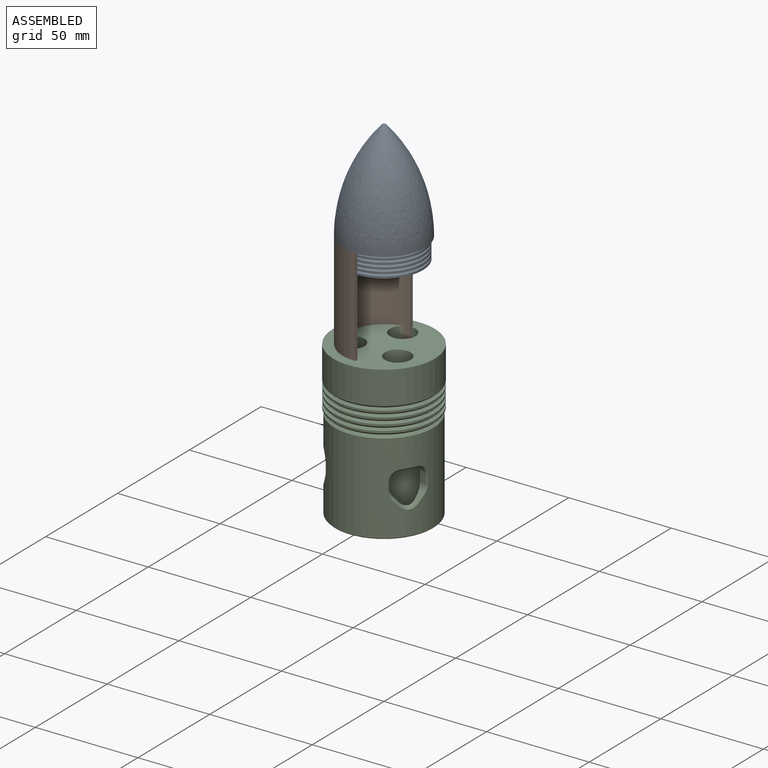
[diagram: assembled view]
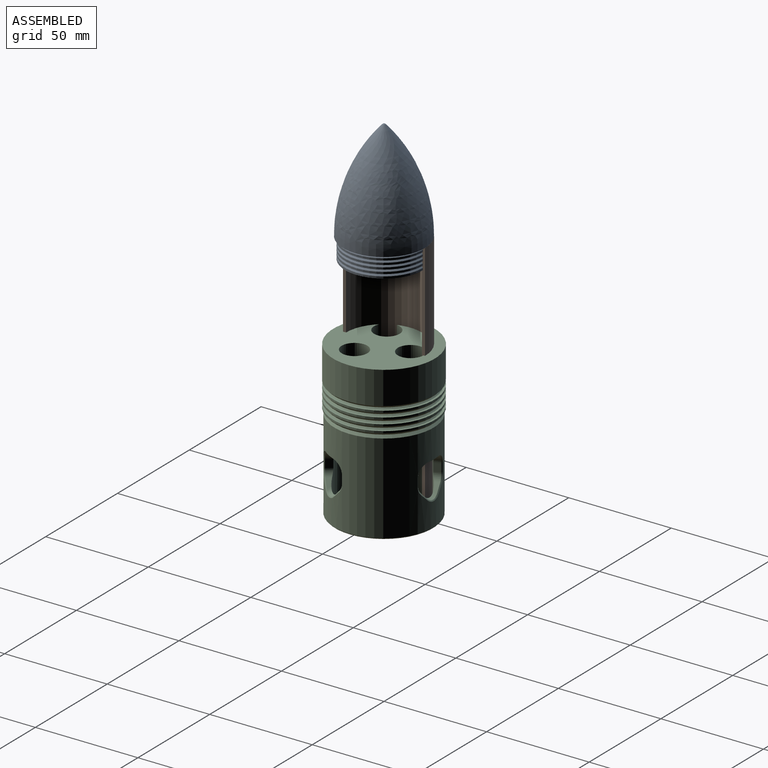
[diagram: assembled view, second angle]
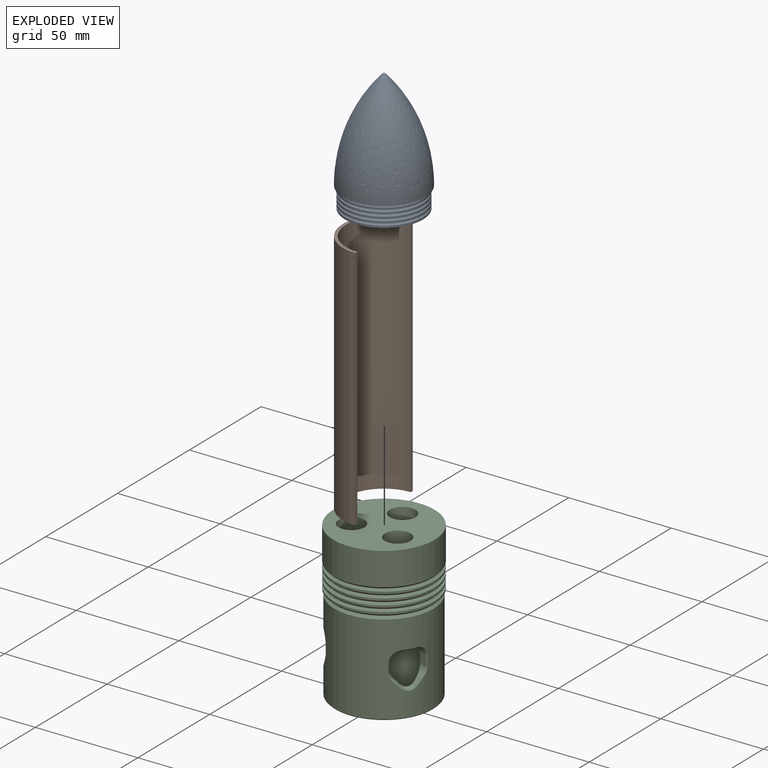
[diagram: exploded view]
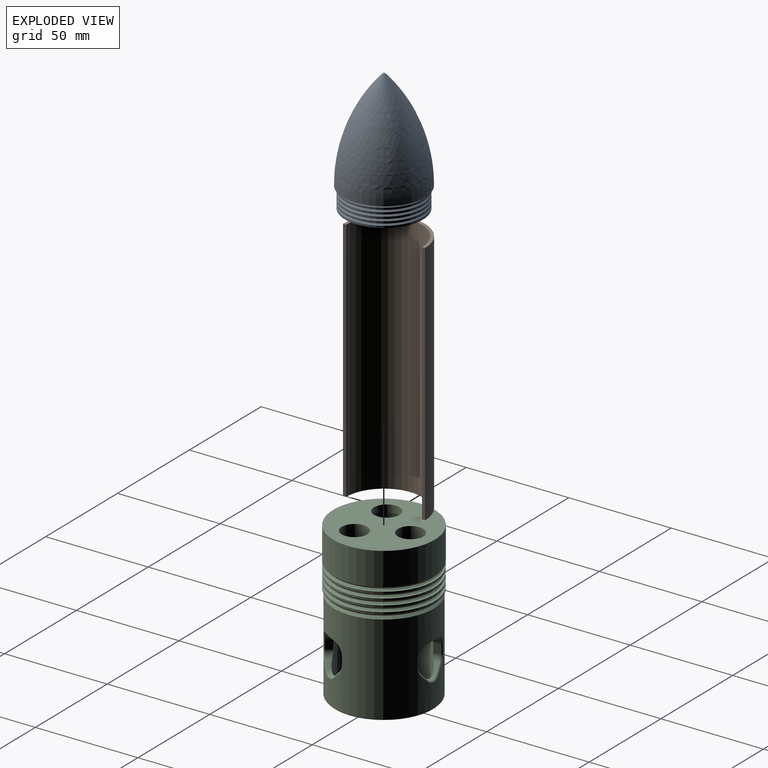
[diagram: exploded view, second angle]
ASSEMBLY  parts=3 mates=2
PART A: 79 faces, bbox 42.4x42.4x62 mm
  f0: sphere r=1mm, area 2mm2, adj f1
  f1: revolved ~49.22x40mm, area 4574.2mm2, adj f0,f2
  f2: plane 40x40mm, normal (0,0,-1), area 238.8mm2, adj f1,f3
  f3: cone r=18mm half-angle=45deg, axis (0,0,-1), area 164.4mm2, adj f2,f4
  f4: cylinder r=19mm len=38mm, axis (0,0,1), area 119.4mm2, adj f3,f5
  f5: plane 38x38mm, normal (0,0,-1), area 116.2mm2, adj f4,f6
  f6: cone r=18mm half-angle=45deg, axis (0,0,-1), area 164.4mm2, adj f5,f7
  f7: cylinder r=19mm len=38mm, axis (0,0,1), area 119.4mm2, adj f6,f8
  f8: plane 38x38mm, normal (0,0,-1), area 116.2mm2, adj f7,f9
  f9: cone r=18mm half-angle=45deg, axis (0,0,-1), area 164.4mm2, adj f8,f10
  f10: cylinder r=19mm len=38mm, axis (0,0,1), area 119.4mm2, adj f9,f11
  f11: plane 38x38mm, normal (0,0,-1), area 116.2mm2, adj f10,f12
  f12: cone r=18mm half-angle=45deg, axis (0,0,-1), area 164.4mm2, adj f11,f13
  f13: cylinder r=19mm len=38mm, axis (0,0,1), area 119.4mm2, adj f12,f14
  f14: plane 38x38mm, normal (0,0,-1), area 116.2mm2, adj f13,f15
  f15: cone r=18mm half-angle=45deg, axis (0,0,-1), area 164.4mm2, adj f14,f16
  f16: cylinder r=19mm len=38mm, axis (0,0,1), area 119.4mm2, adj f15,f17
  f17: plane 38x38mm, normal (0,0,-1), area 728.2mm2, adj f16,f18,f19,f20,f21,f22,f23
  f18: plane 10.83x8.75mm, normal (0.5,-0.87,0), area 109.4mm2, adj f17,f19,f23,f38
  f19: plane 10.83x8.75mm, normal (-0.5,-0.87,0), area 109.4mm2, adj f17,f18,f20,f37
  f20: plane 12.5x8.75mm, normal (-1,0,0), area 109.4mm2, adj f17,f19,f21,f39
  f21: plane 10.83x8.75mm, normal (-0.5,0.87,0), area 109.4mm2, adj f17,f20,f22,f41
  f22: plane 10.83x8.75mm, normal (0.5,0.87,0), area 109.4mm2, adj f17,f21,f23,f42
  f23: plane 12.5x8.75mm, normal (1,0,0), area 109.4mm2, adj f17,f18,f22,f40
  f24: revolved ~17.97x16.76mm, area 0mm2, adj f25,f26,f27,f28,f29,f30
  f25: bspline ~24.3x17.14mm, area 100.9mm2, adj f24,f26,f30,f36
  f26: bspline ~24.95x13.08mm, area 100.8mm2, adj f24,f25,f27,f35
  f27: bspline ~24.32x17.08mm, area 100.9mm2, adj f24,f26,f28,f34
  f28: bspline ~24.3x17.14mm, area 100.9mm2, adj f24,f27,f29,f33
  f29: bspline ~24.95x13.08mm, area 100.8mm2, adj f24,f28,f30,f32
  f30: bspline ~24.32x17.08mm, area 100.9mm2, adj f24,f25,f29,f31
  f31: plane 30.46x9.58mm, normal (0.5,-0.87,0), area 302.7mm2, adj f30,f32,f36,f38
  f32: plane 30.46x11.06mm, normal (1,0,0), area 302.7mm2, adj f29,f31,f33,f40
  f33: plane 30.46x9.58mm, normal (0.5,0.87,0), area 302.7mm2, adj f28,f32,f34,f42
  f34: plane 30.46x9.58mm, normal (-0.5,0.87,0), area 302.7mm2, adj f27,f33,f35,f41
  f35: plane 30.46x11.06mm, normal (-1,0,0), area 302.7mm2, adj f26,f34,f36,f39
  f36: plane 30.46x9.58mm, normal (-0.5,-0.87,0), area 302.7mm2, adj f25,f31,f35,f37
  f37: plane 10.83x6.97mm, normal (-0.35,-0.61,-0.71), area 20.8mm2, adj f19,f36,f38,f39
  f38: plane 10.83x6.97mm, normal (0.35,-0.61,-0.71), area 20.8mm2, adj f18,f31,f37,f40
  f39: plane 12.5x1.25mm, normal (-0.71,0,-0.71), area 20.8mm2, adj f20,f35,f37,f41
  f40: plane 12.5x1.25mm, normal (0.71,0,-0.71), area 20.8mm2, adj f23,f32,f38,f42
  f41: plane 10.83x6.97mm, normal (-0.35,0.61,-0.71), area 20.8mm2, adj f21,f34,f39,f42
  f42: plane 10.83x6.97mm, normal (0.35,0.61,-0.71), area 20.8mm2, adj f22,f33,f40,f41
  f43: bspline ~17.25x11.82mm, area 45.7mm2, adj f44,f45,f46,f47
  f44: plane 21.2x6.09mm, normal (-0.5,0.87,0), area 63mm2, adj f43,f46,f47,f48
  f45: plane 21.21x6.67mm, normal (1,0,0), area 63mm2, adj f43,f46,f47,f48
  f46: plane 21.47x9.58mm, normal (0.5,0.87,0), area 223.8mm2, adj f43,f44,f45,f48
  f47: revolved ~16.86x13.39mm, area 256.1mm2, adj f43,f44,f45,f48
  f48: plane 13.24x9.76mm, normal (0,0,1), area 66.4mm2, adj f44,f45,f46,f47
  f49: plane 15.29x5.42mm, normal (0,0,1), area 66.4mm2, adj f51,f52,f53,f54
  f50: bspline ~20.1x12.09mm, area 45.7mm2, adj f51,f52,f53,f54
  f51: plane 21.2x6.09mm, normal (0.5,0.87,0), area 63mm2, adj f49,f50,f53,f54
  f52: plane 21.2x6.09mm, normal (0.5,-0.87,0), area 63mm2, adj f49,f50,f53,f54
  f53: plane 21.47x11.06mm, normal (1,0,0), area 223.8mm2, adj f49,f50,f51,f52
  f54: revolved ~16.86x15.29mm, area 256.1mm2, adj f49,f50,f51,f52
  f55: plane 13.24x9.76mm, normal (0,0,1), area 66.4mm2, adj f57,f58,f59,f60
  f56: bspline ~17.66x12.47mm, area 45.7mm2, adj f57,f58,f59,f60
  f57: plane 21.21x6.67mm, normal (1,0,0), area 63mm2, adj f55,f56,f59,f60
  f58: plane 21.2x6.09mm, normal (-0.5,-0.87,0), area 63mm2, adj f55,f56,f59,f60
  f59: plane 21.47x9.58mm, normal (0.5,-0.87,0), area 223.8mm2, adj f55,f56,f57,f58
  f60: revolved ~16.86x13.39mm, area 256.1mm2, adj f55,f56,f57,f58
  f61: plane 13.24x9.76mm, normal (0,0,1), area 66.4mm2, adj f63,f64,f65,f66
  f62: bspline ~17.25x11.82mm, area 45.7mm2, adj f63,f64,f65,f66
  f63: plane 21.2x6.09mm, normal (0.5,-0.87,0), area 63mm2, adj f61,f62,f65,f66
  f64: plane 21.21x6.67mm, normal (-1,0,0), area 63mm2, adj f61,f62,f65,f66
  f65: plane 21.47x9.58mm, normal (-0.5,-0.87,0), area 223.8mm2, adj f61,f62,f63,f64
  f66: revolved ~16.86x13.39mm, area 256.1mm2, adj f61,f62,f63,f64
  f67: plane 15.29x5.42mm, normal (0,0,1), area 66.4mm2, adj f69,f70,f71,f72
  f68: bspline ~20.1x12.09mm, area 45.7mm2, adj f69,f70,f71,f72
  f69: plane 21.2x6.09mm, normal (-0.5,-0.87,0), area 63mm2, adj f67,f68,f71,f72
  f70: plane 21.2x6.09mm, normal (-0.5,0.87,0), area 63mm2, adj f67,f68,f71,f72
  f71: plane 21.47x11.06mm, normal (-1,0,0), area 223.8mm2, adj f67,f68,f69,f70
  f72: revolved ~16.86x15.29mm, area 256.1mm2, adj f67,f68,f69,f70
  f73: bspline ~17.66x12.47mm, area 45.7mm2, adj f74,f75,f76,f77
  f74: plane 21.21x6.67mm, normal (1,0,0), area 63mm2, adj f73,f76,f77,f78
  f75: plane 21.2x6.09mm, normal (-0.5,-0.87,0), area 63mm2, adj f73,f76,f77,f78
  f76: plane 21.47x9.58mm, normal (0.5,-0.87,0), area 223.8mm2, adj f73,f74,f75,f78
  f77: revolved ~16.86x13.39mm, area 256.1mm2, adj f73,f74,f75,f78
  f78: plane 13.24x9.76mm, normal (0,0,-1), area 66.4mm2, adj f74,f75,f76,f77
PART B: 6 faces, bbox 20x40x120 mm
  f0: plane 40x20mm, normal (0,0,-1), area 90.7mm2, adj f1,f3,f4,f5
  f1: cylinder r=18.5mm len=120mm, axis (0,0,-1), area 6974.3mm2, adj f0,f2,f4,f5
  f2: plane 40x20mm, normal (0,0,1), area 90.7mm2, adj f1,f3,f4,f5
  f3: cylinder r=20mm len=120mm, axis (0,0,-1), area 7539.8mm2, adj f0,f2,f4,f5
  f4: plane 120x1.5mm, normal (1,0,0), area 180mm2, adj f0,f1,f2,f3
  f5: plane 120x1.5mm, normal (1,0,0), area 180mm2, adj f0,f1,f2,f3
PART C: 98 faces, bbox 49.5x49.5x75 mm
  f0: cylinder r=9.25mm len=5mm, axis (0,0,-1), area 13mm2, adj f1,f15,f35
  f1: cylinder r=9.25mm len=30mm, axis (0,0,-1), area 1539.1mm2, adj f0,f7,f12,f13,f15,f21,f22,f23
  f2: cylinder r=9.25mm len=30mm, axis (0,0,-1), area 1529.9mm2, adj f3,f7,f8,f9,f14,f19,f20,f25
  f3: cylinder r=9.25mm len=3.56mm, axis (0,0,-1), area 2.6mm2, adj f2,f14,f36
  f4: cylinder r=9.25mm len=5mm, axis (0,0,-1), area 13mm2, adj f5,f16,f37
  f5: cylinder r=9.25mm len=30mm, axis (0,0,-1), area 1539.1mm2, adj f4,f7,f10,f11,f16,f17,f18,f27
  f6: cylinder r=24.24mm len=48.48mm, axis (0,0,-1), area 5981.5mm2, adj f66,f67,f68,f69,f70,f71,f72,f73
  f7: plane 47.48x47.48mm, normal (0,0,-1), area 964.2mm2, adj f1,f2,f5,f97
  f8: plane 3.93x3.36mm, normal (0.17,-0.98,0), area 13.4mm2, adj f2,f26,f36,f77
  f9: plane 3.93x2.62mm, normal (-0.77,0.64,0), area 13.4mm2, adj f2,f25,f32,f85
  f10: plane 3.93x2.62mm, normal (0.77,0.64,0), area 13.4mm2, adj f5,f28,f37,f75
  f11: plane 3.93x3.36mm, normal (-0.17,-0.98,0), area 13.4mm2, adj f5,f27,f33,f67
  f12: plane 3.93x3.21mm, normal (-0.94,0.34,0), area 13.4mm2, adj f1,f23,f34,f95
  f13: plane 3.93x3.21mm, normal (0.94,0.34,0), area 13.4mm2, adj f1,f24,f35,f87
  f14: plane 19.99x18.5mm, normal (0,0,-1), area 155.4mm2, adj f2,f3,f32,f36,f63,f81
  f15: plane 20x18.5mm, normal (0,0,-1), area 155.4mm2, adj f0,f1,f34,f35,f65,f91
  f16: plane 19.99x18.5mm, normal (0,0,-1), area 155.4mm2, adj f4,f5,f33,f37,f64,f71
  f17: plane 3.87x3.52mm, normal (-0.12,-0.7,0.71), area 10.1mm2, adj f5,f27,f31,f68
  f18: plane 4.2x3.57mm, normal (0.54,0.45,0.71), area 10.1mm2, adj f5,f28,f31,f72
  f19: plane 4.2x3.57mm, normal (-0.54,0.45,0.71), area 10.1mm2, adj f2,f25,f30,f82
  f20: plane 3.87x3.52mm, normal (0.12,-0.7,0.71), area 10.1mm2, adj f2,f26,f30,f78
  f21: plane 3.52x3.45mm, normal (-0.66,0.24,0.71), area 10.1mm2, adj f1,f23,f29,f92
  f22: plane 3.52x3.45mm, normal (0.66,0.24,0.71), area 10.1mm2, adj f1,f24,f29,f88
  f23: cylinder r=5mm len=3.71mm, axis (0.34,0.94,0), area 12.1mm2, adj f1,f12,f21,f94
  f24: cylinder r=5mm len=3.71mm, axis (0.34,-0.94,0), area 12.1mm2, adj f1,f13,f22,f86
  f25: cylinder r=5mm len=3.56mm, axis (0.64,0.77,0), area 12.1mm2, adj f2,f9,f19,f84
  f26: cylinder r=5mm len=3.62mm, axis (-0.98,-0.17,0), area 12.1mm2, adj f2,f8,f20,f76
  f27: cylinder r=5mm len=3.62mm, axis (-0.98,0.17,0), area 12.1mm2, adj f5,f11,f17,f66
  f28: cylinder r=5mm len=3.56mm, axis (0.64,-0.77,0), area 12.1mm2, adj f5,f10,f18,f74
  f29: cylinder r=5mm len=6.64mm, axis (0,0.95,-0.32), area 9.9mm2, adj f1,f21,f22,f90
  f30: cylinder r=5mm len=6.73mm, axis (-0.82,-0.47,-0.32), area 9.9mm2, adj f2,f19,f20,f80
  f31: cylinder r=5mm len=6.73mm, axis (0.82,-0.47,-0.32), area 9.9mm2, adj f5,f17,f18,f70
  f32: cylinder r=5mm len=6.03mm, axis (0.64,0.77,0), area 20.4mm2, adj f2,f9,f14,f83
  f33: cylinder r=5mm len=5.52mm, axis (-0.98,0.17,0), area 20.4mm2, adj f5,f11,f16,f69
  f34: cylinder r=5mm len=5.87mm, axis (0.34,0.94,0), area 20.4mm2, adj f1,f12,f15,f93
  f35: cylinder r=5mm len=5.87mm, axis (0.34,-0.94,0), area 20.4mm2, adj f0,f13,f15,f89
  f36: cylinder r=5mm len=5.52mm, axis (-0.98,-0.17,0), area 20mm2, adj f2,f3,f8,f14,f79
  f37: cylinder r=5mm len=6.03mm, axis (0.64,-0.77,0), area 20.4mm2, adj f4,f10,f16,f73
  f38: cylinder r=24.74mm len=49.48mm, axis (0,0,-1), area 155.4mm2, adj f39,f42
  f39: plane 49.48x49.48mm, normal (0,0,1), area 152.3mm2, adj f38,f46
  f40: plane 47.48x47.48mm, normal (0,0,-1), area 146mm2, adj f41,f42
  f41: cone r=22.74mm half-angle=45deg, axis (0,0,-1), area 206.5mm2, adj f40,f96
  f42: cone r=24.74mm half-angle=45deg, axis (0,0,1), area 215.4mm2, adj f38,f40
  f43: cylinder r=24.74mm len=49.48mm, axis (0,0,-1), area 155.4mm2, adj f44,f47
  f44: plane 49.48x49.48mm, normal (0,0,1), area 152.3mm2, adj f43,f51
  f45: plane 47.48x47.48mm, normal (0,0,-1), area 146mm2, adj f46,f47
  f46: cone r=22.74mm half-angle=45deg, axis (0,0,-1), area 206.5mm2, adj f39,f45
  f47: cone r=24.74mm half-angle=45deg, axis (0,0,1), area 215.4mm2, adj f43,f45
  f48: cylinder r=24.74mm len=49.48mm, axis (0,0,-1), area 155.4mm2, adj f49,f52
  f49: plane 49.48x49.48mm, normal (0,0,1), area 152.3mm2, adj f48,f56
  f50: plane 47.48x47.48mm, normal (0,0,-1), area 146mm2, adj f51,f52
  f51: cone r=22.74mm half-angle=45deg, axis (0,0,-1), area 206.5mm2, adj f44,f50
  f52: cone r=24.74mm half-angle=45deg, axis (0,0,1), area 215.4mm2, adj f48,f50
  f53: cylinder r=24.74mm len=49.48mm, axis (0,0,-1), area 155.4mm2, adj f54,f57
  f54: plane 49.48x49.48mm, normal (0,0,1), area 152.3mm2, adj f53,f60
  f55: plane 47.48x47.48mm, normal (0,0,-1), area 146mm2, adj f56,f57
  f56: cone r=22.74mm half-angle=45deg, axis (0,0,-1), area 206.5mm2, adj f49,f55
  f57: cone r=24.74mm half-angle=45deg, axis (0,0,1), area 215.4mm2, adj f53,f55
  f58: cylinder r=24.74mm len=49.48mm, axis (0,0,-1), area 2487.2mm2, adj f61,f62
  f59: plane 47.48x47.48mm, normal (0,0,-1), area 146mm2, adj f60,f61
  f60: cone r=22.74mm half-angle=45deg, axis (0,0,-1), area 206.5mm2, adj f54,f59
  f61: cone r=24.74mm half-angle=45deg, axis (0,0,1), area 215.4mm2, adj f58,f59
  f62: plane 49.48x49.48mm, normal (0,0,1), area 1554.8mm2, adj f58,f63,f64,f65
  f63: cylinder r=6.25mm len=45mm, axis (0,0,-1), area 1767.1mm2, adj f14,f62
  f64: cylinder r=6.25mm len=45mm, axis (0,0,-1), area 1767.1mm2, adj f16,f62
  f65: cylinder r=6.25mm len=45mm, axis (0,0,-1), area 1767.1mm2, adj f15,f62
  f66: bspline ~3.89x1.86mm, area 2.9mm2, adj f6,f27,f67,f68
  f67: plane 3.93x0.58mm, normal (0.58,-0.81,0), area 2.8mm2, adj f6,f11,f66,f69
  f68: bspline ~3.83x3.59mm, area 3.4mm2, adj f6,f17,f66,f70
  f69: bspline ~5.51x5.44mm, area 5.8mm2, adj f6,f33,f67,f71
  f70: bspline ~6.46x3.85mm, area 4.8mm2, adj f6,f31,f68,f72
  f71: cone r=24.24mm half-angle=45deg, axis (0,0,1), area 4.6mm2, adj f6,f16,f69,f73
  f72: bspline ~3.83x3.15mm, area 3.4mm2, adj f6,f18,f70,f74
  f73: bspline ~5.51x4.33mm, area 5.8mm2, adj f6,f37,f71,f75
  f74: bspline ~3.89x1.67mm, area 2.9mm2, adj f6,f28,f72,f75
  f75: plane 3.93x0.71mm, normal (1,-0.1,0), area 2.8mm2, adj f6,f10,f73,f74
  f76: bspline ~3.89x1.86mm, area 2.9mm2, adj f6,f26,f77,f78
  f77: plane 3.93x0.58mm, normal (-0.58,-0.81,0), area 2.8mm2, adj f6,f8,f76,f79
  f78: bspline ~3.83x3.59mm, area 3.4mm2, adj f6,f20,f76,f80
  f79: bspline ~5.51x5.44mm, area 5.8mm2, adj f6,f36,f77,f81
  f80: bspline ~6.46x3.85mm, area 4.8mm2, adj f6,f30,f78,f82
  f81: cone r=24.24mm half-angle=45deg, axis (0,0,1), area 4.6mm2, adj f6,f14,f79,f83
  f82: bspline ~3.83x3.15mm, area 3.4mm2, adj f6,f19,f80,f84
  f83: bspline ~5.51x4.33mm, area 5.8mm2, adj f6,f32,f81,f85
  f84: bspline ~3.89x1.67mm, area 2.9mm2, adj f6,f25,f82,f85
  f85: plane 3.93x0.71mm, normal (-1,-0.1,0), area 2.8mm2, adj f6,f9,f83,f84
  f86: bspline ~3.89x2.04mm, area 2.9mm2, adj f6,f24,f87,f88
  f87: plane 3.93x0.65mm, normal (0.41,0.91,0), area 2.8mm2, adj f6,f13,f86,f89
  f88: bspline ~3.89x3.83mm, area 3.4mm2, adj f6,f22,f86,f90
  f89: bspline ~5.53x5.51mm, area 5.8mm2, adj f6,f35,f87,f91
  f90: bspline ~7.46x1.92mm, area 4.8mm2, adj f6,f29,f88,f92
  f91: cone r=24.24mm half-angle=45deg, axis (0,0,1), area 4.6mm2, adj f6,f15,f89,f93
  f92: bspline ~3.89x3.83mm, area 3.4mm2, adj f6,f21,f90,f94
  f93: bspline ~5.53x5.51mm, area 5.8mm2, adj f6,f34,f91,f95
  f94: bspline ~3.89x2.04mm, area 2.9mm2, adj f6,f23,f92,f95
  f95: plane 3.93x0.65mm, normal (-0.41,0.91,0), area 2.8mm2, adj f6,f12,f93,f94
  f96: cone r=23.74mm half-angle=45deg, axis (0,0,-1), area 106.6mm2, adj f6,f41
  f97: cone r=24.24mm half-angle=45deg, axis (0,0,1), area 106.6mm2, adj f6,f7
PLACE A t=(0,0,-49.22)mm
PLACE B t=(0,0,-169.22)mm
PLACE C t=(0,0,-171.72)mm
MATE fastened C.f6 <-> B.f1  axis (0,0,-1) through (0,0,-149.22)mm
MATE fastened B.f1 <-> A.f3  axis (0,0,1) through (0,0,-49.22)mm
